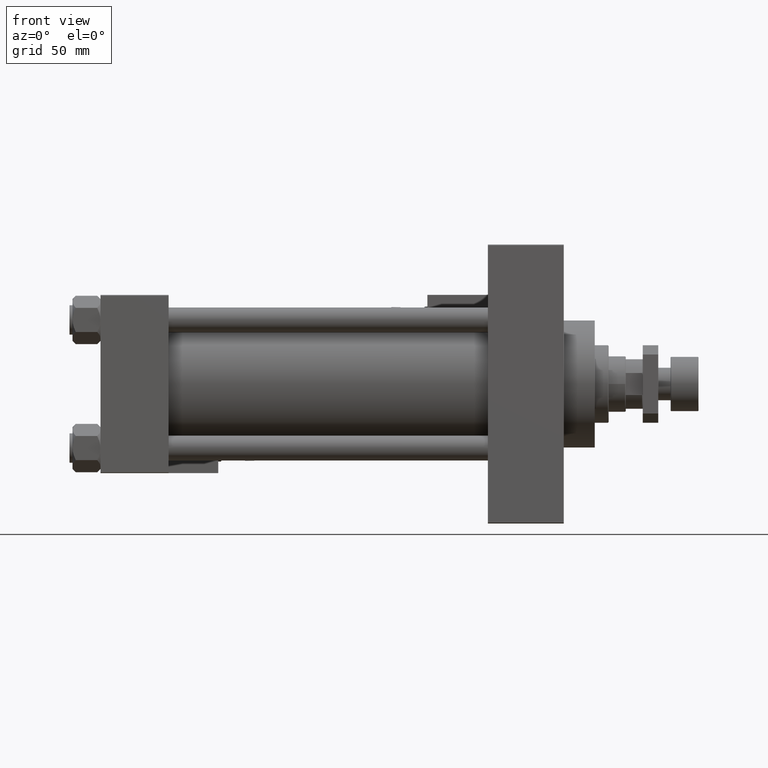
[diagram: clean part render]
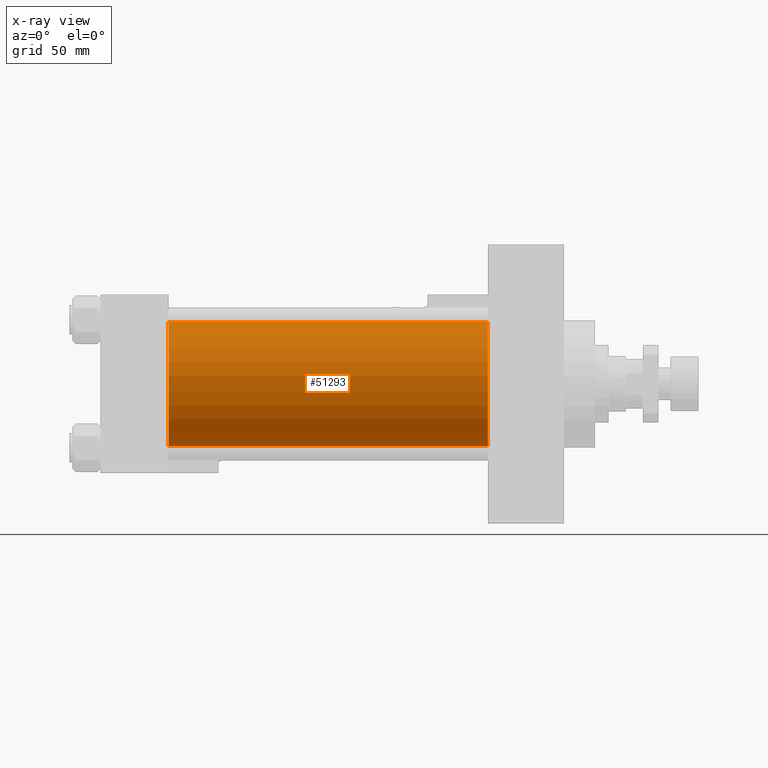
[diagram: x-ray — body ghosted, one internal face saturated and labeled with its STEP entity id]
A machine part, front view, then the same camera in x-ray: the body is ghosted and one INTERNAL B-rep face — a face not visible from any outside direction — is saturated and labeled: STEP entity #51293.
In plain terms, the highlighted cylindrical surface (partial cylindrical patch) has radius 40 mm, axis along (-1, -0, -0).
Its self-contained STEP definition (entity closure, byte-faithful):
#3226 = EDGE_LOOP ( 'NONE', ( #29463, #18963, #23873, #6117 ) ) ;
#3737 = CARTESIAN_POINT ( 'NONE',  ( 250.0000000000000000, 2.296501982624201990E-15, -40.00000000000000000 ) ) ;
#3852 = VECTOR ( 'NONE', #13826, 1000.000000000000000 ) ;
#6117 = ORIENTED_EDGE ( 'NONE', *, *, #14571, .F. ) ;
#6516 = VERTEX_POINT ( 'NONE', #3737 ) ;
#6769 = FACE_OUTER_BOUND ( 'NONE', #3226, .T. ) ;
#8944 = CARTESIAN_POINT ( 'NONE',  ( 250.0000000000000000, 2.296501982624201990E-15, -40.00000000000000000 ) ) ;
#9215 = VERTEX_POINT ( 'NONE', #44516 ) ;
#13541 = LINE ( 'NONE', #21450, #40172 ) ;
#13826 = DIRECTION ( 'NONE',  ( -1.000000000000000000, -0.000000000000000000, -0.000000000000000000 ) ) ;
#14571 = EDGE_CURVE ( 'NONE', #17212, #44753, #13541, .T. ) ;
#17212 = VERTEX_POINT ( 'NONE', #24258 ) ;
#18963 = ORIENTED_EDGE ( 'NONE', *, *, #34309, .T. ) ;
#19294 = DIRECTION ( 'NONE',  ( -1.000000000000000000, -0.000000000000000000, -0.000000000000000000 ) ) ;
#19845 = CARTESIAN_POINT ( 'NONE',  ( 250.0000000000000000, -2.602085213965210642E-15, 0.000000000000000000 ) ) ;
#20983 = DIRECTION ( 'NONE',  ( 1.000000000000000000, 0.000000000000000000, 0.000000000000000000 ) ) ;
#21450 = CARTESIAN_POINT ( 'NONE',  ( 250.0000000000000000, -2.602085213965210642E-15, 40.00000000000000000 ) ) ;
#22834 = CYLINDRICAL_SURFACE ( 'NONE', #33996, 40.00000000000000000 ) ;
#23873 = ORIENTED_EDGE ( 'NONE', *, *, #50498, .F. ) ;
#24258 = CARTESIAN_POINT ( 'NONE',  ( 250.0000000000000000, -2.602085213965210642E-15, 40.00000000000000000 ) ) ;
#29463 = ORIENTED_EDGE ( 'NONE', *, *, #50802, .T. ) ;
#30219 = DIRECTION ( 'NONE',  ( 0.000000000000000000, 0.000000000000000000, -1.000000000000000000 ) ) ;
#31417 = AXIS2_PLACEMENT_3D ( 'NONE', #19845, #36440, #44901 ) ;
#33996 = AXIS2_PLACEMENT_3D ( 'NONE', #47071, #19294, #35887 ) ;
#34309 = EDGE_CURVE ( 'NONE', #6516, #9215, #38333, .T. ) ;
#35674 = CIRCLE ( 'NONE', #36556, 40.00000000000000000 ) ;
#35887 = DIRECTION ( 'NONE',  ( 0.000000000000000000, 0.000000000000000000, 1.000000000000000000 ) ) ;
#36440 = DIRECTION ( 'NONE',  ( 1.000000000000000000, 0.000000000000000000, 0.000000000000000000 ) ) ;
#36556 = AXIS2_PLACEMENT_3D ( 'NONE', #46027, #20983, #30219 ) ;
#38333 = LINE ( 'NONE', #8944, #3852 ) ;
#40172 = VECTOR ( 'NONE', #51398, 1000.000000000000000 ) ;
#44516 = CARTESIAN_POINT ( 'NONE',  ( 44.00000000000000000, 2.296501982624201990E-15, -40.00000000000000000 ) ) ;
#44753 = VERTEX_POINT ( 'NONE', #51216 ) ;
#44901 = DIRECTION ( 'NONE',  ( 0.000000000000000000, 0.000000000000000000, -1.000000000000000000 ) ) ;
#45286 = CIRCLE ( 'NONE', #31417, 40.00000000000000000 ) ;
#46027 = CARTESIAN_POINT ( 'NONE',  ( 44.00000000000000000, -2.602085213965210642E-15, 0.000000000000000000 ) ) ;
#47071 = CARTESIAN_POINT ( 'NONE',  ( 250.0000000000000000, -2.602085213965210642E-15, 0.000000000000000000 ) ) ;
#50498 = EDGE_CURVE ( 'NONE', #44753, #9215, #35674, .T. ) ;
#50802 = EDGE_CURVE ( 'NONE', #17212, #6516, #45286, .T. ) ;
#51216 = CARTESIAN_POINT ( 'NONE',  ( 44.00000000000000000, -2.602085213965210642E-15, 40.00000000000000000 ) ) ;
#51293 = ADVANCED_FACE ( 'NONE', ( #6769 ), #22834, .F. ) ;
#51398 = DIRECTION ( 'NONE',  ( -1.000000000000000000, -0.000000000000000000, -0.000000000000000000 ) ) ;